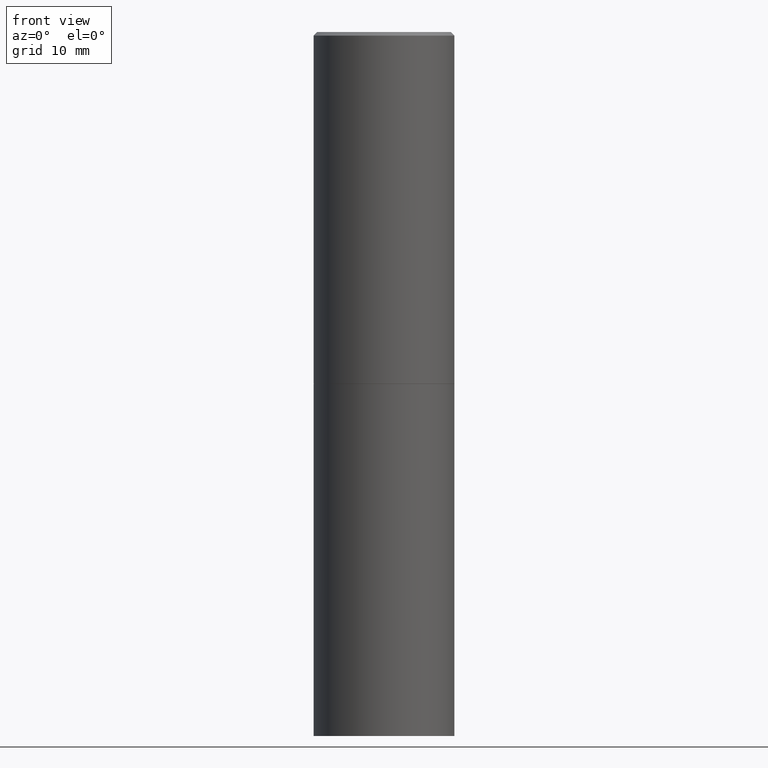
[diagram: clean part render]
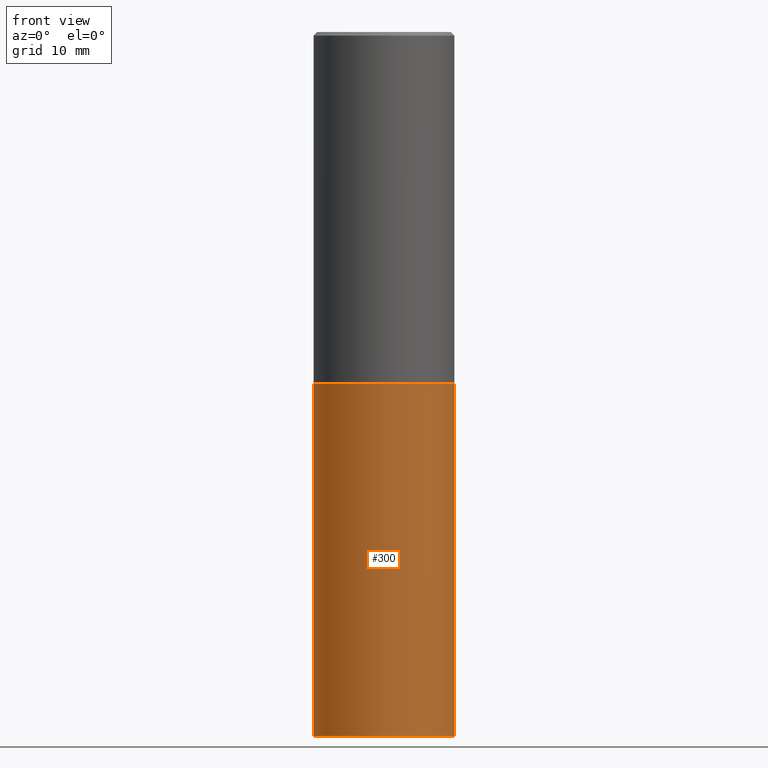
[diagram: same view with one face highlighted and labeled with its STEP entity id]
A machine part, front view. The second image highlights one B-rep face of the part: STEP entity #300.
In plain terms, the highlighted cylindrical surface (partial cylindrical patch) has radius 10 mm, axis along (-0, 0, 1).
Its self-contained STEP definition (entity closure, byte-faithful):
#15 = FACE_OUTER_BOUND ( 'NONE', #68, .T. ) ;
#36 = CARTESIAN_POINT ( 'NONE',  ( 0.3937000000000000499, -9.622173421717814924E-15, -1.968500000000000139 ) ) ;
#40 = DIRECTION ( 'NONE',  ( -2.445468806185136597E-29, 3.491481338843145583E-15, 1.000000000000000000 ) ) ;
#60 = AXIS2_PLACEMENT_3D ( 'NONE', #157, #305, #238 ) ;
#62 = VERTEX_POINT ( 'NONE', #313 ) ;
#64 = DIRECTION ( 'NONE',  ( -2.445468806185136597E-29, 3.491481338843145583E-15, 1.000000000000000000 ) ) ;
#66 = CIRCLE ( 'NONE', #60, 0.3937000000000000499 ) ;
#68 = EDGE_LOOP ( 'NONE', ( #237, #161, #219, #344 ) ) ;
#69 = DIRECTION ( 'NONE',  ( -2.445468806185136877E-29, 3.491481338843145188E-15, 1.000000000000000000 ) ) ;
#91 = CARTESIAN_POINT ( 'NONE',  ( -0.3937000000000000499, 2.797406750687514786E-15, -1.936584745033356735E-29 ) ) ;
#93 = VERTEX_POINT ( 'NONE', #197 ) ;
#94 = LINE ( 'NONE', #209, #253 ) ;
#122 = VERTEX_POINT ( 'NONE', #36 ) ;
#147 = DIRECTION ( 'NONE',  ( 1.000000000000000000, -6.982962677686265922E-15, 4.876176775795935793E-29 ) ) ;
#157 = CARTESIAN_POINT ( 'NONE',  ( 9.627810689950883669E-29, -1.374596203102546341E-14, -3.937000000000000277 ) ) ;
#161 = ORIENTED_EDGE ( 'NONE', *, *, #247, .T. ) ;
#197 = CARTESIAN_POINT ( 'NONE',  ( -0.3937000000000000499, -7.512064772581583563E-15, -1.968500000000000139 ) ) ;
#205 = DIRECTION ( 'NONE',  ( -2.445468806185136877E-29, 3.491481338843145188E-15, 1.000000000000000000 ) ) ;
#209 = CARTESIAN_POINT ( 'NONE',  ( 0.3937000000000000499, -2.749192406205083217E-15, 1.919750796630860172E-29 ) ) ;
#210 = AXIS2_PLACEMENT_3D ( 'NONE', #256, #40, #357 ) ;
#219 = ORIENTED_EDGE ( 'NONE', *, *, #269, .T. ) ;
#220 = CIRCLE ( 'NONE', #210, 0.3937000000000000499 ) ;
#237 = ORIENTED_EDGE ( 'NONE', *, *, #334, .F. ) ;
#238 = DIRECTION ( 'NONE',  ( 1.000000000000000000, -6.982962677686267499E-15, 0.000000000000000000 ) ) ;
#247 = EDGE_CURVE ( 'NONE', #62, #294, #66, .T. ) ;
#253 = VECTOR ( 'NONE', #69, 39.37007874015748143 ) ;
#254 = AXIS2_PLACEMENT_3D ( 'NONE', #260, #64, #147 ) ;
#256 = CARTESIAN_POINT ( 'NONE',  ( 4.813905344975441835E-29, -6.872981015512731707E-15, -1.968500000000000139 ) ) ;
#260 = CARTESIAN_POINT ( 'NONE',  ( 0.000000000000000000, 0.000000000000000000, 0.000000000000000000 ) ) ;
#269 = EDGE_CURVE ( 'NONE', #294, #122, #94, .T. ) ;
#288 = CARTESIAN_POINT ( 'NONE',  ( 0.3937000000000000499, -1.649515443723054663E-14, -3.937000000000000277 ) ) ;
#294 = VERTEX_POINT ( 'NONE', #288 ) ;
#296 = CYLINDRICAL_SURFACE ( 'NONE', #254, 0.3937000000000000499 ) ;
#300 = ADVANCED_FACE ( 'NONE', ( #15 ), #296, .T. ) ;
#305 = DIRECTION ( 'NONE',  ( -2.445468806185136597E-29, 3.491481338843145583E-15, 1.000000000000000000 ) ) ;
#313 = CARTESIAN_POINT ( 'NONE',  ( -0.3937000000000000499, -7.512064772581583563E-15, -3.937000000000000277 ) ) ;
#314 = EDGE_CURVE ( 'NONE', #93, #122, #220, .T. ) ;
#317 = VECTOR ( 'NONE', #205, 39.37007874015748143 ) ;
#334 = EDGE_CURVE ( 'NONE', #62, #93, #350, .T. ) ;
#344 = ORIENTED_EDGE ( 'NONE', *, *, #314, .F. ) ;
#350 = LINE ( 'NONE', #91, #317 ) ;
#357 = DIRECTION ( 'NONE',  ( 1.000000000000000000, -6.982962677686265133E-15, 0.000000000000000000 ) ) ;